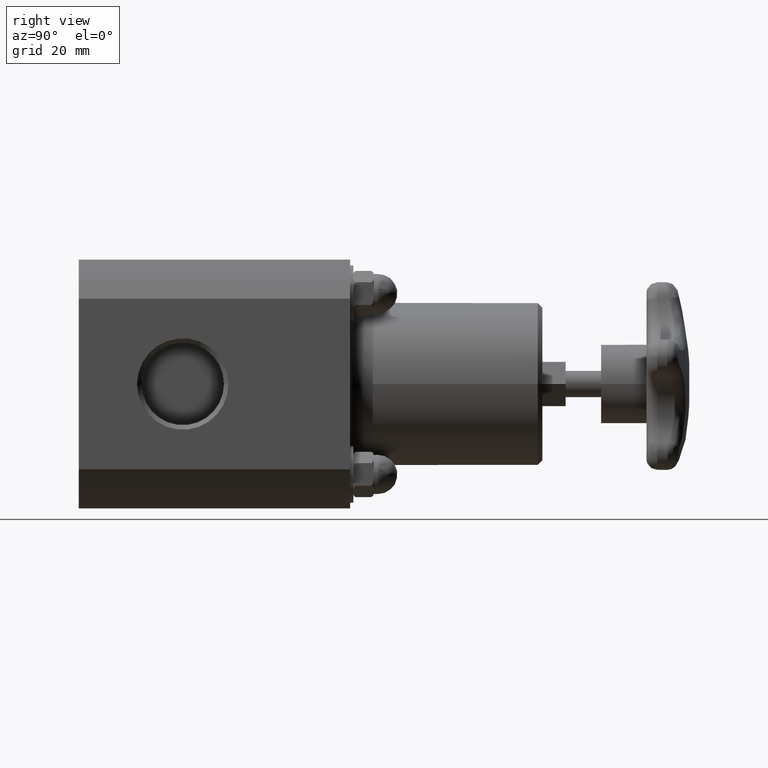
[diagram: clean part render]
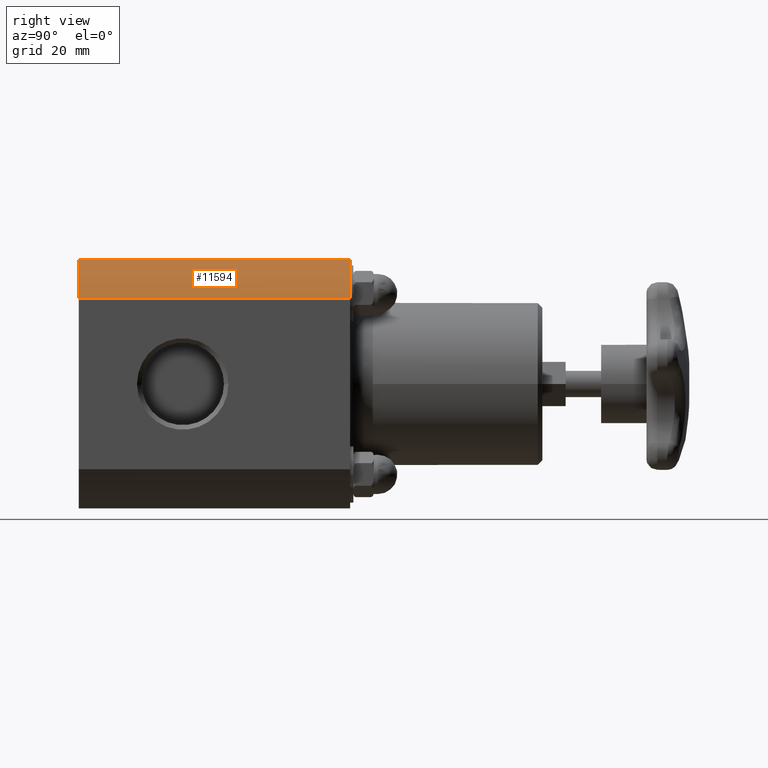
[diagram: same view with one face highlighted and labeled with its STEP entity id]
A machine part, right view. The second image highlights one B-rep face of the part: STEP entity #11594.
In plain terms, the highlighted cylindrical surface (partial cylindrical patch) has radius 50.4825 mm, axis along (-0, 1, 0).
Its self-contained STEP definition (entity closure, byte-faithful):
#10855=CARTESIAN_POINT('',(1.435106703349964,3.000000000000001,1.374999999999999));
#10856=VERTEX_POINT('',#10855);
#10863=CARTESIAN_POINT('',(1.749999999999999,3.000000000000002,0.942155109310564));
#10864=VERTEX_POINT('',#10863);
#10865=CARTESIAN_POINT('',(-1.102337E-015,3.000000000000000,-5.510831E-017));
#10866=DIRECTION('',(0.0,-1.0,0.0));
#10867=DIRECTION('',(1.0,0.0,0.0));
#10868=AXIS2_PLACEMENT_3D('',#10865,#10866,#10867);
#10869=CIRCLE('',#10868,1.987500000000001);
#10870=EDGE_CURVE('',#10864,#10856,#10869,.T.);
#11067=CARTESIAN_POINT('',(1.435106703349963,3.227068E-016,1.375000000000000));
#11068=VERTEX_POINT('',#11067);
#11069=CARTESIAN_POINT('',(1.750000000000000,6.041433E-016,0.942155109310564));
#11070=VERTEX_POINT('',#11069);
#11071=CARTESIAN_POINT('',(0.0,0.0,0.0));
#11072=DIRECTION('',(0.0,1.0,0.0));
#11073=DIRECTION('',(1.0,0.0,0.0));
#11074=AXIS2_PLACEMENT_3D('',#11071,#11072,#11073);
#11075=CIRCLE('',#11074,1.987500000000000);
#11076=EDGE_CURVE('',#11068,#11070,#11075,.T.);
#11356=CARTESIAN_POINT('',(1.750000000000000,6.041433E-016,0.942155109310564));
#11357=DIRECTION('',(0.0,1.0,0.0));
#11358=VECTOR('',#11357,3.000000000000001);
#11359=LINE('',#11356,#11358);
#11360=EDGE_CURVE('',#11070,#10864,#11359,.T.);
#11537=CARTESIAN_POINT('',(1.435106703349963,3.227068E-016,1.375000000000000));
#11538=DIRECTION('',(0.0,1.0,0.0));
#11539=VECTOR('',#11538,3.000000000000001);
#11540=LINE('',#11537,#11539);
#11541=EDGE_CURVE('',#11068,#10856,#11540,.T.);
#11583=CARTESIAN_POINT('',(0.0,0.0,0.0));
#11584=DIRECTION('',(-4.996004E-016,1.0,2.867440E-016));
#11585=DIRECTION('',(1.0,0.0,0.0));
#11586=AXIS2_PLACEMENT_3D('',#11583,#11584,#11585);
#11587=CYLINDRICAL_SURFACE('',#11586,1.987500000000000);
#11588=ORIENTED_EDGE('',*,*,#11541,.F.);
#11589=ORIENTED_EDGE('',*,*,#11076,.T.);
#11590=ORIENTED_EDGE('',*,*,#11360,.T.);
#11591=ORIENTED_EDGE('',*,*,#10870,.T.);
#11592=EDGE_LOOP('',(#11588,#11589,#11590,#11591));
#11593=FACE_OUTER_BOUND('',#11592,.T.);
#11594=ADVANCED_FACE('',(#11593),#11587,.T.);